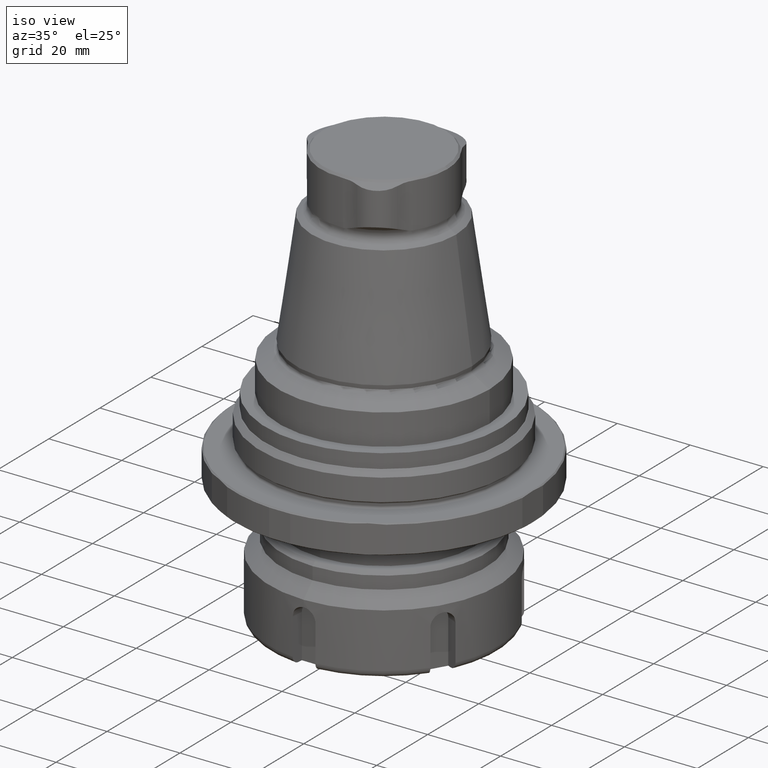
[diagram: clean part render]
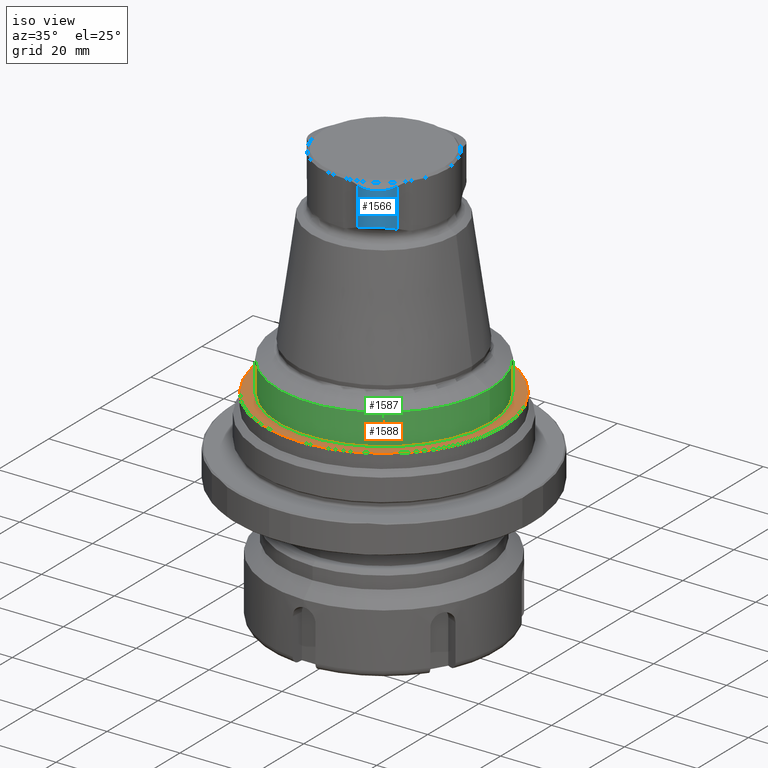
[diagram: same view with three faces highlighted in distinct colors, each labeled with its STEP entity id]
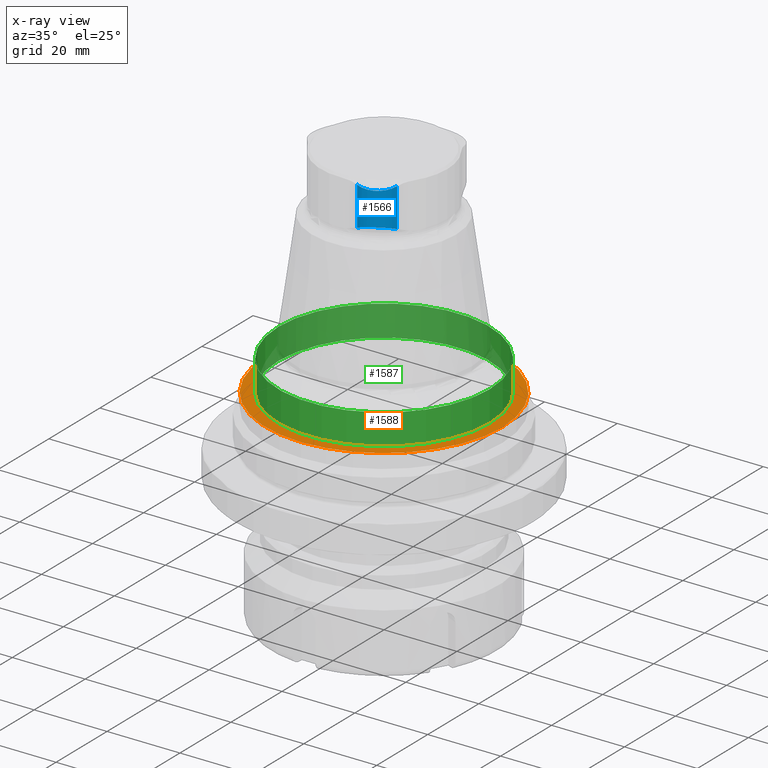
[diagram: x-ray of the same camera — body ghosted, the three highlighted faces saturated]
A machine part, iso view with three faces highlighted in distinct colors.
The next image is the same camera in x-ray (body ghosted, the three faces saturated) — at least one of them is partly hidden behind the body in this view.
Their STEP definitions:

[orange] entity #1588 — the highlighted planar face has unit normal (-0, -0, 1).
#261=PLANE('',#1785);
#740=ORIENTED_EDGE('',*,*,#962,.F.);
#741=ORIENTED_EDGE('',*,*,#963,.T.);
#962=EDGE_CURVE('',#1118,#1118,#1207,.T.);
#963=EDGE_CURVE('',#1119,#1119,#1208,.T.);
#1118=VERTEX_POINT('',#2890);
#1119=VERTEX_POINT('',#2893);
#1207=CIRCLE('',#1782,32.48);
#1208=CIRCLE('',#1784,29.);
#1337=EDGE_LOOP('',(#740));
#1338=EDGE_LOOP('',(#741));
#1472=FACE_BOUND('',#1337,.T.);
#1473=FACE_BOUND('',#1338,.T.);
#1588=ADVANCED_FACE('',(#1472,#1473),#261,.T.);
#1782=AXIS2_PLACEMENT_3D('',#2889,#2229,#2230);
#1784=AXIS2_PLACEMENT_3D('',#2892,#2233,#2234);
#1785=AXIS2_PLACEMENT_3D('',#2894,#2235,#2236);
#2229=DIRECTION('',(2.02660218267322E-18,6.37707980616386E-17,-1.));
#2230=DIRECTION('',(-1.,8.32667268468867E-17,-2.02660218267322E-18));
#2233=DIRECTION('',(-1.22461692971323E-16,7.49836836562635E-33,-1.));
#2234=DIRECTION('',(1.,-6.12303176911189E-17,-1.22461692971323E-16));
#2235=DIRECTION('',(-2.02660218267322E-18,-6.37707980616386E-17,1.));
#2236=DIRECTION('',(8.32667268468867E-17,1.,6.37707980616386E-17));
#2889=CARTESIAN_POINT('',(-7.4139489907273E-15,-2.86918422730627E-31,12.46));
#2890=CARTESIAN_POINT('',(-32.48,2.70450328798688E-15,12.46));
#2892=CARTESIAN_POINT('',(-7.4139489907273E-15,4.53958452047983E-31,12.46));
#2893=CARTESIAN_POINT('',(29.,-1.77567921304245E-15,12.46));
#2894=CARTESIAN_POINT('',(-7.4139489907273E-15,-2.86918422730627E-31,12.46));

[blue] entity #1566 — the highlighted cylindrical surface (edge-blend (fillet) strip) has radius 6.35 mm, axis along (0, 0, 1).
#46=B_SPLINE_CURVE_WITH_KNOTS('',3,(#2729,#2730,#2731,#2732,#2733,#2734,
#2735),.UNSPECIFIED.,.F.,.F.,(4,1,1,1,4),(2.0780305890025E-7,0.00249926800682696,
0.00499832821059502,0.00749738841436307,0.00999644861813113),
 .UNSPECIFIED.);
#47=B_SPLINE_CURVE_WITH_KNOTS('',3,(#2739,#2740,#2741,#2742,#2743,#2744,
#2745),.UNSPECIFIED.,.F.,.F.,(4,1,1,1,4),(2.22622473042287E-7,0.00256277658807975,
0.00512533055368646,0.00768788451929317,0.0102504384848999),
 .UNSPECIFIED.);
#140=LINE('',#2726,#222);
#141=LINE('',#2737,#223);
#222=VECTOR('',#2151,1000.);
#223=VECTOR('',#2152,1000.);
#279=CYLINDRICAL_SURFACE('',#1746,6.35);
#642=ORIENTED_EDGE('',*,*,#919,.T.);
#643=ORIENTED_EDGE('',*,*,#920,.F.);
#644=ORIENTED_EDGE('',*,*,#921,.F.);
#645=ORIENTED_EDGE('',*,*,#922,.F.);
#919=EDGE_CURVE('',#1090,#1091,#140,.T.);
#920=EDGE_CURVE('',#1092,#1091,#46,.T.);
#921=EDGE_CURVE('',#1093,#1092,#141,.T.);
#922=EDGE_CURVE('',#1090,#1093,#47,.T.);
#1090=VERTEX_POINT('',#2727);
#1091=VERTEX_POINT('',#2728);
#1092=VERTEX_POINT('',#2736);
#1093=VERTEX_POINT('',#2738);
#1306=EDGE_LOOP('',(#642,#643,#644,#645));
#1441=FACE_BOUND('',#1306,.T.);
#1566=ADVANCED_FACE('',(#1441),#279,.T.);
#1746=AXIS2_PLACEMENT_3D('',#2725,#2149,#2150);
#2149=DIRECTION('',(0.,0.,1.));
#2150=DIRECTION('',(-1.,6.12303176911189E-17,0.));
#2151=DIRECTION('',(0.,0.,1.));
#2152=DIRECTION('',(0.,0.,1.));
#2725=CARTESIAN_POINT('',(6.725,-11.6480416809007,-46.0210065492642));
#2726=CARTESIAN_POINT('',(12.8605894539389,-13.2842085589157,-46.0210065492642));
#2727=CARTESIAN_POINT('',(12.8605894539389,-13.2842085589157,61.4315662257756));
#2728=CARTESIAN_POINT('',(12.8605894539389,-13.2842085589157,72.0597450497322));
#2729=CARTESIAN_POINT('',(5.07416735422223,-17.7797014542112,72.0597450497322));
#2730=CARTESIAN_POINT('',(5.87590912923549,-17.9955551617892,71.9041145762542));
#2731=CARTESIAN_POINT('',(7.55419121162804,-18.1103113265225,71.6659092087945));
#2732=CARTESIAN_POINT('',(9.98270063513308,-17.2942047855116,71.5414607373918));
#2733=CARTESIAN_POINT('',(11.9021748230453,-15.6040924017105,71.6650186116628));
#2734=CARTESIAN_POINT('',(12.6466334241237,-14.0865389188441,71.9041000731467));
#2735=CARTESIAN_POINT('',(12.8605894539389,-13.2842085589157,72.0597450497322));
#2736=CARTESIAN_POINT('',(5.07416735422223,-17.7797014542112,72.0597450497322));
#2737=CARTESIAN_POINT('',(5.07416735422223,-17.7797014542112,-46.0210065492642));
#2738=CARTESIAN_POINT('',(5.07416735422223,-17.7797014542112,61.4315662257756));
#2739=CARTESIAN_POINT('',(12.8605894539389,-13.2842085589157,61.4315662257756));
#2740=CARTESIAN_POINT('',(12.6559533165556,-14.0515895292158,61.7747609236224));
#2741=CARTESIAN_POINT('',(11.9468886882131,-15.5485378600859,62.327023880192));
#2742=CARTESIAN_POINT('',(9.99549141301236,-17.2995269222432,62.6326113820302));
#2743=CARTESIAN_POINT('',(7.49887206683356,-18.1211490319263,62.329304869661));
#2744=CARTESIAN_POINT('',(5.84145522722697,-17.9862791046835,61.774939209046));
#2745=CARTESIAN_POINT('',(5.07416735422223,-17.7797014542112,61.4315662257756));

[green] entity #1587 — the highlighted cylindrical surface (bore or boss wall) has radius 29 mm, axis along (-0, 0, -1).
#290=CYLINDRICAL_SURFACE('',#1783,29.);
#738=ORIENTED_EDGE('',*,*,#961,.T.);
#739=ORIENTED_EDGE('',*,*,#963,.F.);
#961=EDGE_CURVE('',#1117,#1117,#1206,.T.);
#963=EDGE_CURVE('',#1119,#1119,#1208,.T.);
#1117=VERTEX_POINT('',#2887);
#1119=VERTEX_POINT('',#2893);
#1206=CIRCLE('',#1780,29.);
#1208=CIRCLE('',#1784,29.);
#1335=EDGE_LOOP('',(#738));
#1336=EDGE_LOOP('',(#739));
#1470=FACE_BOUND('',#1335,.T.);
#1471=FACE_BOUND('',#1336,.T.);
#1587=ADVANCED_FACE('',(#1470,#1471),#290,.T.);
#1780=AXIS2_PLACEMENT_3D('',#2886,#2225,#2226);
#1783=AXIS2_PLACEMENT_3D('',#2891,#2231,#2232);
#1784=AXIS2_PLACEMENT_3D('',#2892,#2233,#2234);
#2225=DIRECTION('',(-1.22461692971323E-16,7.49836836562635E-33,-1.));
#2226=DIRECTION('',(1.,-6.12303176911189E-17,-1.22461692971323E-16));
#2231=DIRECTION('',(-1.22461692971323E-16,7.49836836562635E-33,-1.));
#2232=DIRECTION('',(1.,-6.12303176911189E-17,-1.22461692971323E-16));
#2233=DIRECTION('',(-1.22461692971323E-16,7.49836836562635E-33,-1.));
#2234=DIRECTION('',(1.,-6.12303176911189E-17,-1.22461692971323E-16));
#2886=CARTESIAN_POINT('',(-6.37646553852014E-15,3.9043301067006E-31,20.9319019232415));
#2887=CARTESIAN_POINT('',(29.,-1.77567921304245E-15,20.9319019232415));
#2891=CARTESIAN_POINT('',(0.,0.,73.0009643688614));
#2892=CARTESIAN_POINT('',(-7.4139489907273E-15,4.53958452047983E-31,12.46));
#2893=CARTESIAN_POINT('',(29.,-1.77567921304245E-15,12.46));